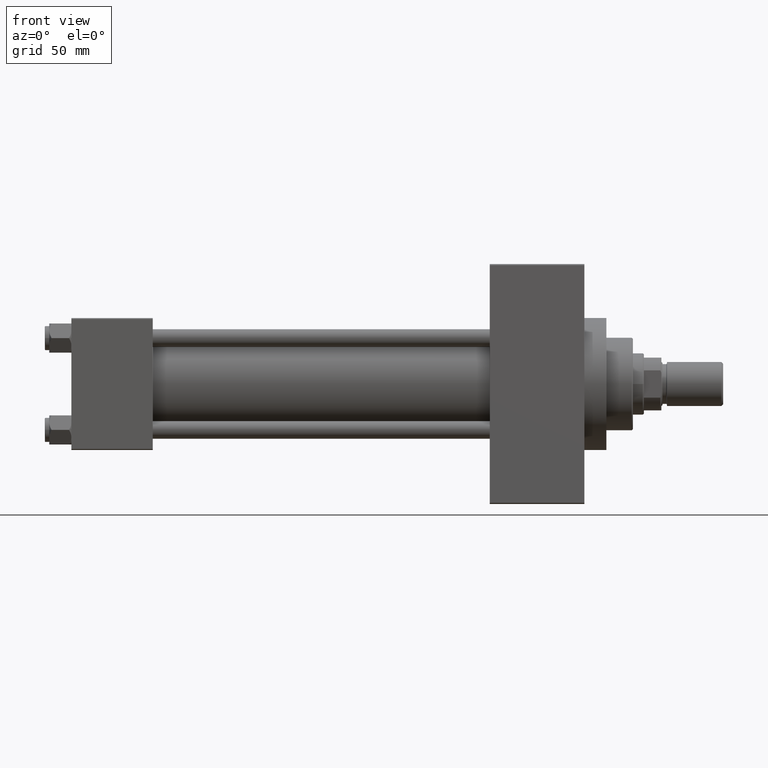
[diagram: clean part render]
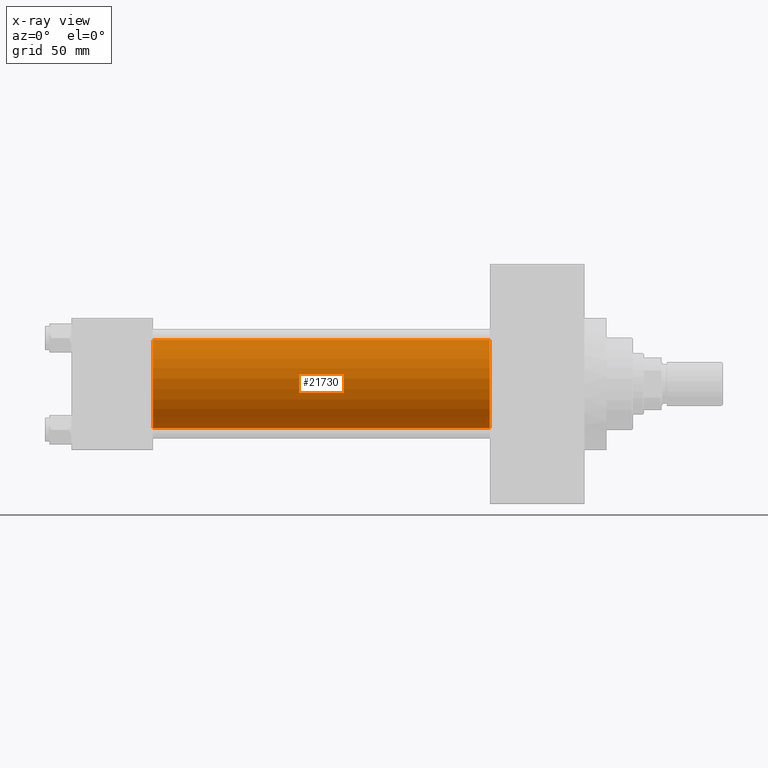
[diagram: x-ray — body ghosted, one internal face saturated and labeled with its STEP entity id]
A machine part, front view, then the same camera in x-ray: the body is ghosted and one INTERNAL B-rep face — a face not visible from any outside direction — is saturated and labeled: STEP entity #21730.
In plain terms, the highlighted cylindrical surface (partial cylindrical patch) has radius 20 mm, axis along (-1, -0, -0).
Its self-contained STEP definition (entity closure, byte-faithful):
#580 = LINE ( 'NONE', #33173, #2465 ) ;
#1024 = ORIENTED_EDGE ( 'NONE', *, *, #14942, .T. ) ;
#1978 = DIRECTION ( 'NONE',  ( 0.000000000000000000, 0.000000000000000000, 1.000000000000000000 ) ) ;
#2465 = VECTOR ( 'NONE', #22543, 1000.000000000000000 ) ;
#5344 = CYLINDRICAL_SURFACE ( 'NONE', #9437, 20.00000000000000000 ) ;
#8210 = VERTEX_POINT ( 'NONE', #21231 ) ;
#8732 = FACE_OUTER_BOUND ( 'NONE', #41099, .T. ) ;
#9437 = AXIS2_PLACEMENT_3D ( 'NONE', #27326, #16198, #1978 ) ;
#10296 = DIRECTION ( 'NONE',  ( 0.000000000000000000, 0.000000000000000000, -1.000000000000000000 ) ) ;
#13188 = AXIS2_PLACEMENT_3D ( 'NONE', #17950, #40402, #25438 ) ;
#14788 = ORIENTED_EDGE ( 'NONE', *, *, #44768, .F. ) ;
#14867 = AXIS2_PLACEMENT_3D ( 'NONE', #46991, #18028, #10296 ) ;
#14942 = EDGE_CURVE ( 'NONE', #36131, #39702, #41729, .T. ) ;
#16198 = DIRECTION ( 'NONE',  ( -1.000000000000000000, -0.000000000000000000, -0.000000000000000000 ) ) ;
#17950 = CARTESIAN_POINT ( 'NONE',  ( 190.0000000000000000, -2.602085213965210642E-15, 0.000000000000000000 ) ) ;
#18017 = VERTEX_POINT ( 'NONE', #18339 ) ;
#18028 = DIRECTION ( 'NONE',  ( 1.000000000000000000, 0.000000000000000000, 0.000000000000000000 ) ) ;
#18339 = CARTESIAN_POINT ( 'NONE',  ( 37.00000000000000000, -1.527916156705042519E-16, -20.00000000000000000 ) ) ;
#20032 = EDGE_CURVE ( 'NONE', #8210, #18017, #45727, .T. ) ;
#20214 = VECTOR ( 'NONE', #44620, 1000.000000000000000 ) ;
#21231 = CARTESIAN_POINT ( 'NONE',  ( 37.00000000000000000, -2.602085213965210642E-15, 20.00000000000000000 ) ) ;
#21730 = ADVANCED_FACE ( 'NONE', ( #8732 ), #5344, .F. ) ;
#22543 = DIRECTION ( 'NONE',  ( -1.000000000000000000, -0.000000000000000000, -0.000000000000000000 ) ) ;
#22884 = CARTESIAN_POINT ( 'NONE',  ( 190.0000000000000000, -1.527916156705042519E-16, -20.00000000000000000 ) ) ;
#25438 = DIRECTION ( 'NONE',  ( 0.000000000000000000, 0.000000000000000000, -1.000000000000000000 ) ) ;
#26042 = LINE ( 'NONE', #40751, #20214 ) ;
#27326 = CARTESIAN_POINT ( 'NONE',  ( 190.0000000000000000, -2.602085213965210642E-15, 0.000000000000000000 ) ) ;
#31352 = ORIENTED_EDGE ( 'NONE', *, *, #43814, .T. ) ;
#33173 = CARTESIAN_POINT ( 'NONE',  ( 190.0000000000000000, -1.527916156705042519E-16, -20.00000000000000000 ) ) ;
#36131 = VERTEX_POINT ( 'NONE', #38825 ) ;
#38825 = CARTESIAN_POINT ( 'NONE',  ( 190.0000000000000000, -2.602085213965210642E-15, 20.00000000000000000 ) ) ;
#39702 = VERTEX_POINT ( 'NONE', #22884 ) ;
#40402 = DIRECTION ( 'NONE',  ( 1.000000000000000000, 0.000000000000000000, 0.000000000000000000 ) ) ;
#40751 = CARTESIAN_POINT ( 'NONE',  ( 190.0000000000000000, -2.602085213965210642E-15, 20.00000000000000000 ) ) ;
#41099 = EDGE_LOOP ( 'NONE', ( #1024, #31352, #45163, #14788 ) ) ;
#41729 = CIRCLE ( 'NONE', #13188, 20.00000000000000000 ) ;
#43814 = EDGE_CURVE ( 'NONE', #39702, #18017, #580, .T. ) ;
#44620 = DIRECTION ( 'NONE',  ( -1.000000000000000000, -0.000000000000000000, -0.000000000000000000 ) ) ;
#44768 = EDGE_CURVE ( 'NONE', #36131, #8210, #26042, .T. ) ;
#45163 = ORIENTED_EDGE ( 'NONE', *, *, #20032, .F. ) ;
#45727 = CIRCLE ( 'NONE', #14867, 20.00000000000000000 ) ;
#46991 = CARTESIAN_POINT ( 'NONE',  ( 37.00000000000000000, -2.602085213965210642E-15, 0.000000000000000000 ) ) ;